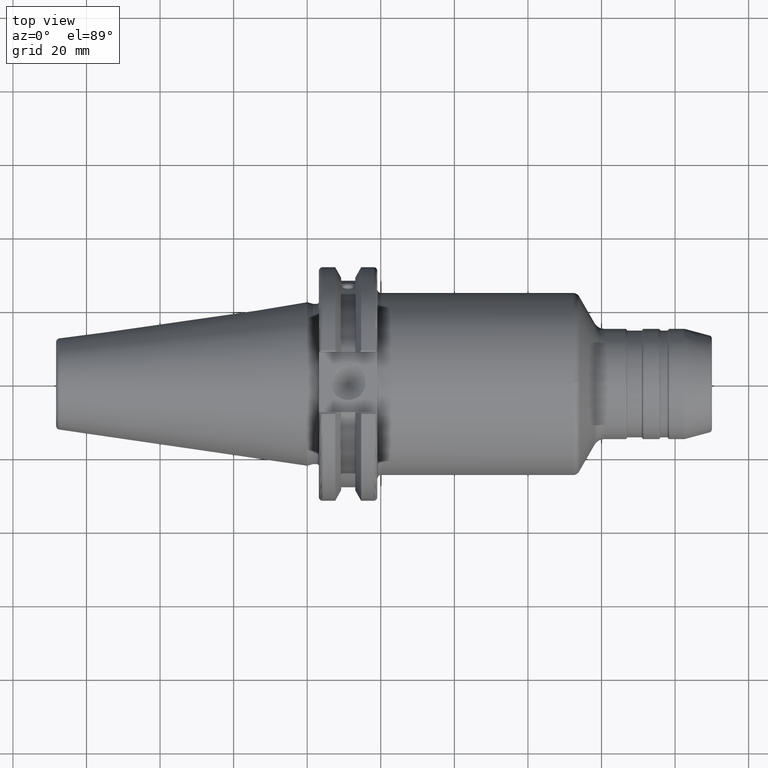
[diagram: clean part render]
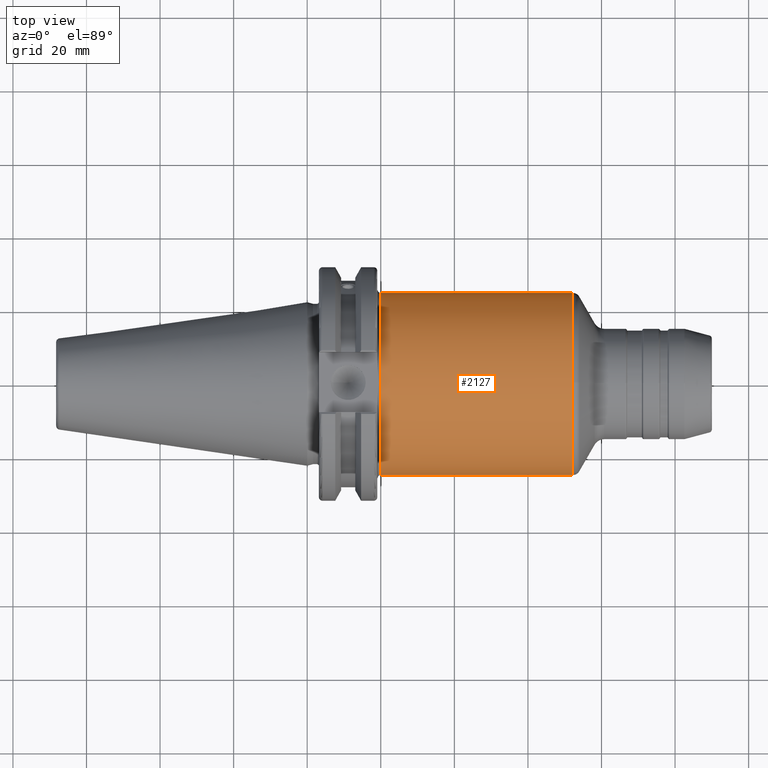
[diagram: same view with one face highlighted and labeled with its STEP entity id]
A machine part, top view. The second image highlights one B-rep face of the part: STEP entity #2127.
In plain terms, the highlighted cylindrical surface (bore or boss wall) has radius 24.75 mm, axis along (1, 0, 0).
Its self-contained STEP definition (entity closure, byte-faithful):
#124=B_SPLINE_CURVE_WITH_KNOTS('',3,(#3585,#3586,#3587,#3588,#3589,#3590,
#3591,#3592,#3593,#3594,#3595,#3596,#3597,#3598,#3599,#3600,#3601,#3602),
 .UNSPECIFIED.,.F.,.F.,(4,2,2,2,2,2,2,2,4),(-2.48845986202559,-2.17733241913027,
-1.86620497623495,-1.55521745362387,-1.24422993101279,-0.933242408401712,
-0.622254885790633,-0.311127442895316,0.),.UNSPECIFIED.);
#198=FACE_OUTER_BOUND('',#309,.T.);
#309=EDGE_LOOP('',(#1575,#1576,#1577,#1578,#1579,#1580,#1581,#1582));
#419=LINE('',#3584,#515);
#515=VECTOR('',#2796,24.75);
#678=CIRCLE('',#2339,24.75);
#679=CIRCLE('',#2340,24.75);
#682=CIRCLE('',#2345,24.75);
#683=CIRCLE('',#2346,24.75);
#684=CIRCLE('',#2347,24.75);
#857=VERTEX_POINT('',#3543);
#858=VERTEX_POINT('',#3554);
#859=VERTEX_POINT('',#3556);
#864=VERTEX_POINT('',#3579);
#865=VERTEX_POINT('',#3580);
#866=VERTEX_POINT('',#3582);
#1128=EDGE_CURVE('',#857,#858,#678,.T.);
#1129=EDGE_CURVE('',#858,#859,#679,.T.);
#1136=EDGE_CURVE('',#864,#865,#682,.T.);
#1137=EDGE_CURVE('',#866,#864,#683,.T.);
#1138=EDGE_CURVE('',#866,#858,#419,.T.);
#1139=EDGE_CURVE('',#857,#859,#124,.T.);
#1140=EDGE_CURVE('',#865,#866,#684,.T.);
#1575=ORIENTED_EDGE('',*,*,#1136,.F.);
#1576=ORIENTED_EDGE('',*,*,#1137,.F.);
#1577=ORIENTED_EDGE('',*,*,#1138,.T.);
#1578=ORIENTED_EDGE('',*,*,#1128,.F.);
#1579=ORIENTED_EDGE('',*,*,#1139,.T.);
#1580=ORIENTED_EDGE('',*,*,#1129,.F.);
#1581=ORIENTED_EDGE('',*,*,#1138,.F.);
#1582=ORIENTED_EDGE('',*,*,#1140,.F.);
#2071=CYLINDRICAL_SURFACE('',#2344,24.75);
#2127=ADVANCED_FACE('',(#198),#2071,.T.);
#2339=AXIS2_PLACEMENT_3D('',#3555,#2777,#2778);
#2340=AXIS2_PLACEMENT_3D('',#3557,#2779,#2780);
#2344=AXIS2_PLACEMENT_3D('',#3578,#2790,#2791);
#2345=AXIS2_PLACEMENT_3D('',#3581,#2792,#2793);
#2346=AXIS2_PLACEMENT_3D('',#3583,#2794,#2795);
#2347=AXIS2_PLACEMENT_3D('',#3603,#2797,#2798);
#2777=DIRECTION('center_axis',(-1.,0.,0.));
#2778=DIRECTION('ref_axis',(0.,6.12323399573676E-17,1.));
#2779=DIRECTION('center_axis',(-1.,0.,0.));
#2780=DIRECTION('ref_axis',(0.,6.12323399573676E-17,1.));
#2790=DIRECTION('center_axis',(1.,0.,0.));
#2791=DIRECTION('ref_axis',(0.,1.,0.));
#2792=DIRECTION('center_axis',(1.,0.,0.));
#2793=DIRECTION('ref_axis',(0.,-1.,1.83697019872103E-16));
#2794=DIRECTION('center_axis',(1.,0.,0.));
#2795=DIRECTION('ref_axis',(0.,-1.,1.83697019872103E-16));
#2796=DIRECTION('',(-1.,0.,0.));
#2797=DIRECTION('center_axis',(1.,0.,0.));
#2798=DIRECTION('ref_axis',(0.,-1.,1.83697019872103E-16));
#3543=CARTESIAN_POINT('',(20.05,-8.19,-23.3556502799644));
#3554=CARTESIAN_POINT('',(20.05,-24.75,-3.0310008278897E-15));
#3555=CARTESIAN_POINT('Origin',(20.05,0.,0.));
#3556=CARTESIAN_POINT('',(20.05,8.19,-23.3556502799644));
#3557=CARTESIAN_POINT('Origin',(20.05,0.,0.));
#3578=CARTESIAN_POINT('Origin',(46.2104174377006,0.,0.));
#3579=CARTESIAN_POINT('',(72.2161343370219,24.75,-1.51550041394485E-15));
#3580=CARTESIAN_POINT('',(72.2161343370219,-3.0310008278897E-15,24.75));
#3581=CARTESIAN_POINT('Origin',(72.2161343370219,0.,0.));
#3582=CARTESIAN_POINT('',(72.2161343370219,-24.75,-3.0310008278897E-15));
#3583=CARTESIAN_POINT('Origin',(72.2161343370219,0.,0.));
#3584=CARTESIAN_POINT('',(46.2104174377006,-24.75,-3.0310008278897E-15));
#3585=CARTESIAN_POINT('Ctrl Pts',(20.05,-8.19,-23.3556502799644));
#3586=CARTESIAN_POINT('Ctrl Pts',(21.0870914763177,-8.19,-23.3556502799644));
#3587=CARTESIAN_POINT('Ctrl Pts',(22.1874172494719,-7.98112852617488,-23.4319820145953));
#3588=CARTESIAN_POINT('Ctrl Pts',(24.2026226557734,-7.14301766428651,-23.7009173446597));
#3589=CARTESIAN_POINT('Ctrl Pts',(25.1182638848105,-6.51414519102515,-23.8889373554493));
#3590=CARTESIAN_POINT('Ctrl Pts',(26.563820070037,-5.06858900579863,-24.2368381566145));
#3591=CARTESIAN_POINT('Ctrl Pts',(27.1929429534371,-4.15281808103606,-24.420258379043));
#3592=CARTESIAN_POINT('Ctrl Pts',(28.0312404144778,-2.13713243178097,-24.6784841969774));
#3593=CARTESIAN_POINT('Ctrl Pts',(28.24,-1.03662507537027,-24.75));
#3594=CARTESIAN_POINT('Ctrl Pts',(28.24,1.03662507537027,-24.75));
#3595=CARTESIAN_POINT('Ctrl Pts',(28.0312404144778,2.13713243178098,-24.6784841969774));
#3596=CARTESIAN_POINT('Ctrl Pts',(27.1929429534371,4.15281808103606,-24.420258379043));
#3597=CARTESIAN_POINT('Ctrl Pts',(26.563820070037,5.06858900579863,-24.2368381566145));
#3598=CARTESIAN_POINT('Ctrl Pts',(25.1182638848105,6.51414519102515,-23.8889373554493));
#3599=CARTESIAN_POINT('Ctrl Pts',(24.2026226557734,7.14301766428652,-23.7009173446597));
#3600=CARTESIAN_POINT('Ctrl Pts',(22.1874172494719,7.98112852617489,-23.4319820145953));
#3601=CARTESIAN_POINT('Ctrl Pts',(21.0870914763177,8.19,-23.3556502799644));
#3602=CARTESIAN_POINT('Ctrl Pts',(20.05,8.19,-23.3556502799644));
#3603=CARTESIAN_POINT('Origin',(72.2161343370219,0.,0.));